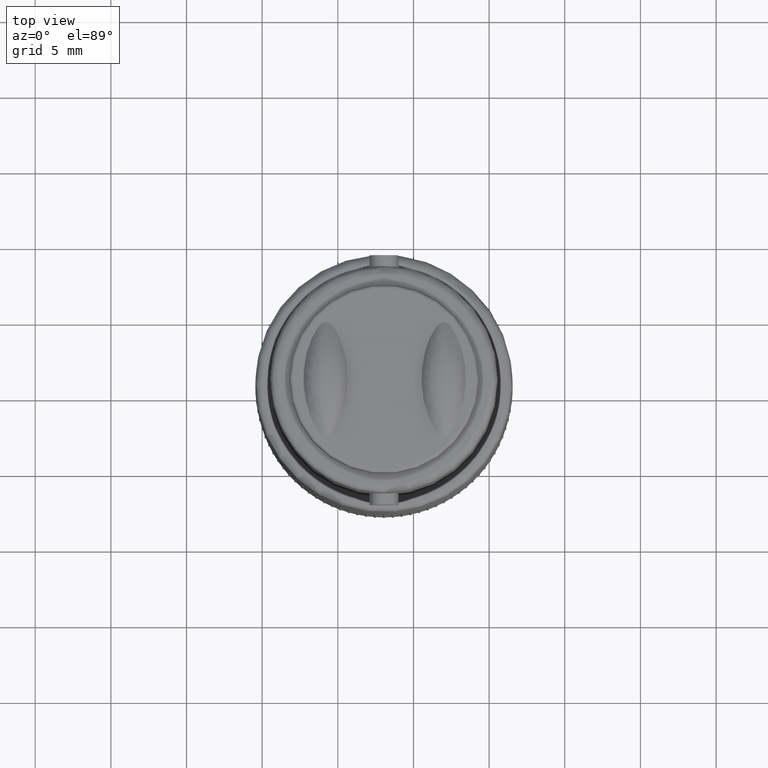
[diagram: clean part render]
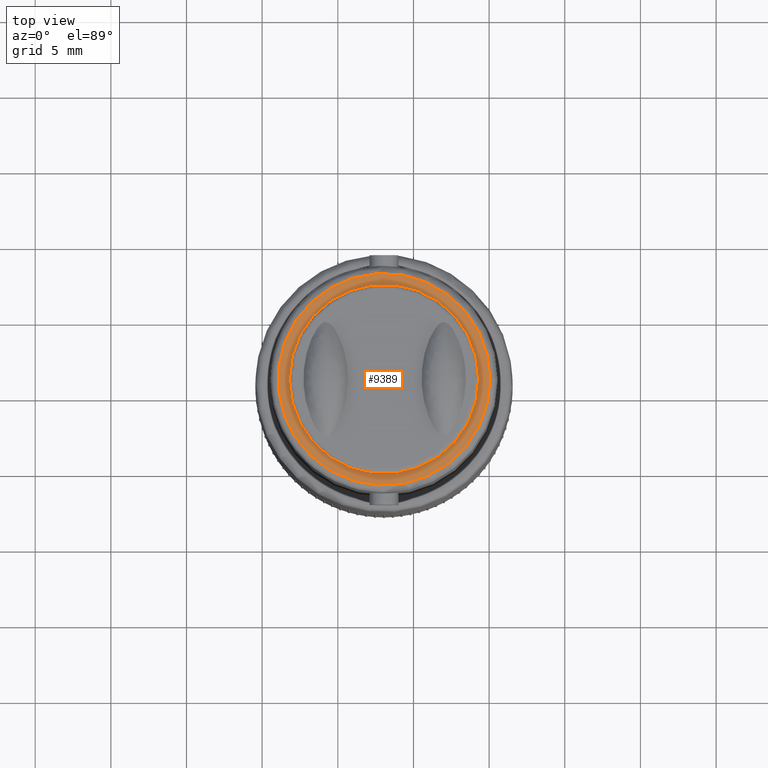
[diagram: same view with one face highlighted and labeled with its STEP entity id]
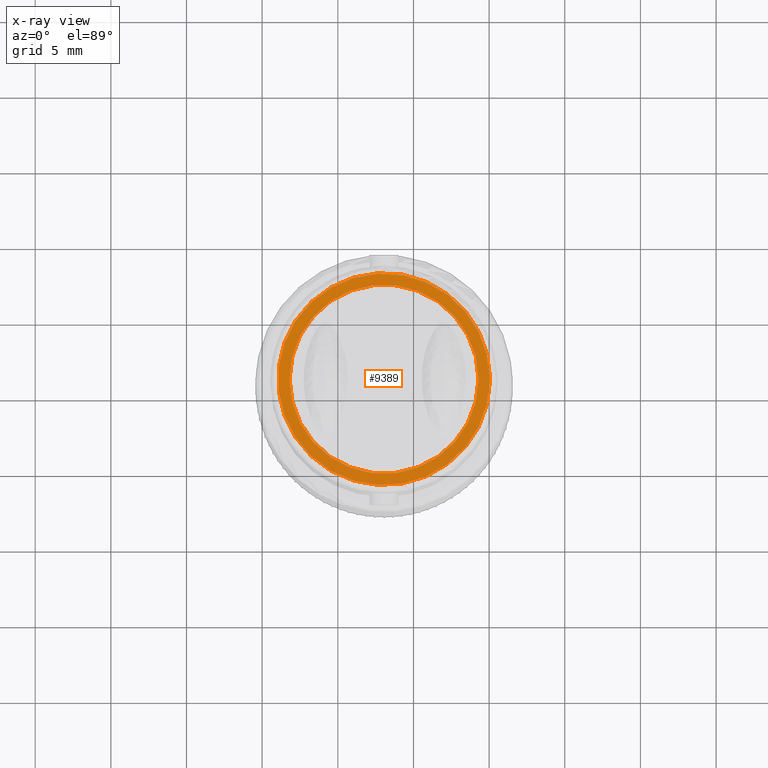
[diagram: x-ray of the same camera — body ghosted, the highlighted face saturated]
A machine part, top view. The second image highlights one B-rep face of the part: STEP entity #9389.
The next image is the same camera in x-ray: the body ghosted, the highlighted face saturated — about 0% of this face is hidden behind the body in this view.
In plain terms, the highlighted planar face has unit normal (0, 0, -1).
Its self-contained STEP definition (entity closure, byte-faithful):
#9302=CARTESIAN_POINT('',(-5.697431124239413,5.734766993235530,16.0));
#9303=VERTEX_POINT('',#9302);
#9304=CARTESIAN_POINT('',(-11.947431124239413,5.734766993235528,16.0));
#9305=DIRECTION('',(0.0,0.0,-1.0));
#9306=DIRECTION('',(-1.0,0.0,0.0));
#9307=AXIS2_PLACEMENT_3D('',#9304,#9305,#9306);
#9308=CIRCLE('',#9307,6.250000000000000);
#9309=EDGE_CURVE('',#9303,#9303,#9308,.T.);
#9337=CARTESIAN_POINT('',(-4.947431124239414,5.734766993235527,16.0));
#9338=VERTEX_POINT('',#9337);
#9339=CARTESIAN_POINT('',(-11.947431124239413,5.734766993235528,16.0));
#9340=DIRECTION('',(0.0,0.0,-1.0));
#9341=DIRECTION('',(-1.0,0.0,0.0));
#9342=AXIS2_PLACEMENT_3D('',#9339,#9340,#9341);
#9343=CIRCLE('',#9342,7.0);
#9344=EDGE_CURVE('',#9338,#9338,#9343,.T.);
#9378=CARTESIAN_POINT('',(-11.947431124239413,5.734766993235528,16.0));
#9379=DIRECTION('',(0.0,0.0,-1.0));
#9380=DIRECTION('',(-1.0,0.0,0.0));
#9381=AXIS2_PLACEMENT_3D('',#9378,#9379,#9380);
#9382=PLANE('',#9381);
#9383=ORIENTED_EDGE('',*,*,#9344,.F.);
#9384=EDGE_LOOP('',(#9383));
#9385=FACE_OUTER_BOUND('',#9384,.T.);
#9386=ORIENTED_EDGE('',*,*,#9309,.T.);
#9387=EDGE_LOOP('',(#9386));
#9388=FACE_BOUND('',#9387,.T.);
#9389=ADVANCED_FACE('',(#9385,#9388),#9382,.F.);